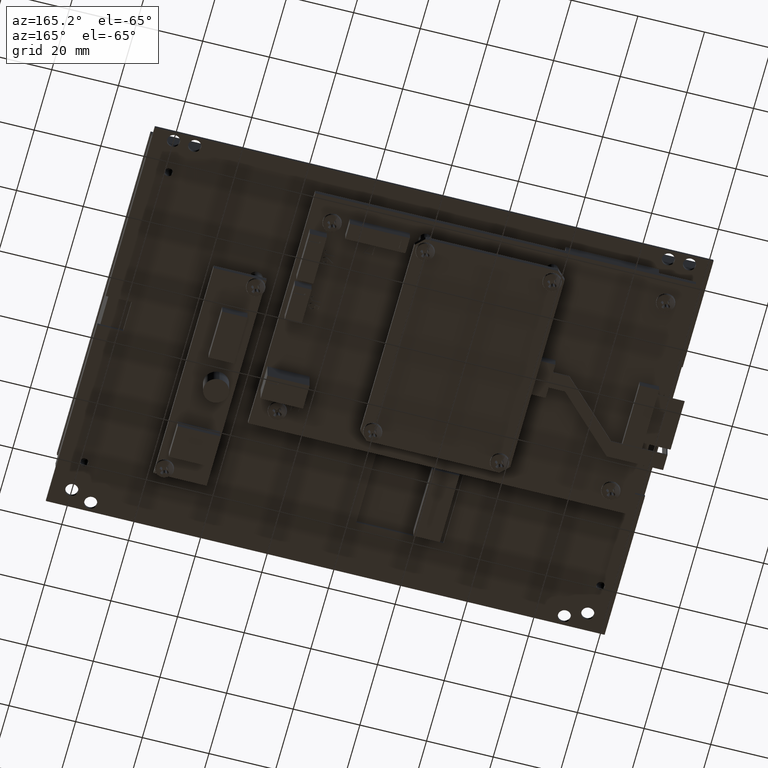
[diagram: clean part render]
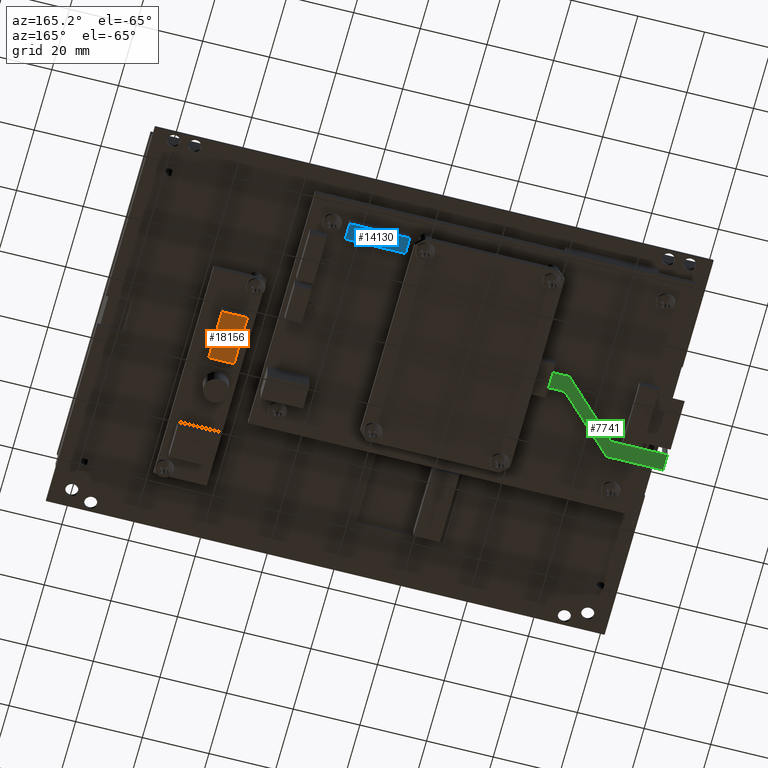
[diagram: same view with three faces highlighted in distinct colors, each labeled with its STEP entity id]
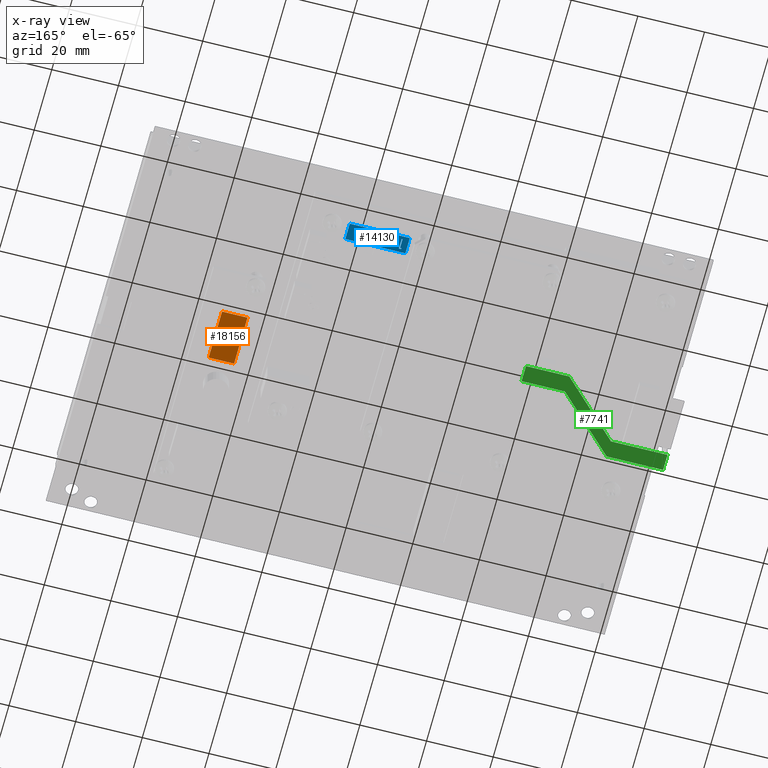
[diagram: x-ray of the same camera — body ghosted, the three highlighted faces saturated]
A machine part, auxiliary view with three faces highlighted in distinct colors.
The next image is the same camera in x-ray (body ghosted, the three faces saturated) — at least one of them is partly hidden behind the body in this view.
Their STEP definitions:

[orange] entity #18156 — the highlighted planar face has unit normal (0, 0, -1).
#5366 = EDGE_LOOP ( 'NONE', ( #8019, #8020, #8021, #8022 ) ) ;
#5927 = AXIS2_PLACEMENT_3D ( 'NONE', #12803, #12814, #12815 ) ;
#6467 = VECTOR ( 'NONE', #11881, 39.37007874015748100 ) ;
#6470 = VECTOR ( 'NONE', #11900, 39.37007874015748100 ) ;
#6472 = VECTOR ( 'NONE', #11913, 39.37007874015748100 ) ;
#6473 = VECTOR ( 'NONE', #11920, 39.37007874015748100 ) ;
#8019 = ORIENTED_EDGE ( 'NONE', *, *, #17822, .T. ) ;
#8020 = ORIENTED_EDGE ( 'NONE', *, *, #17825, .T. ) ;
#8021 = ORIENTED_EDGE ( 'NONE', *, *, #17827, .T. ) ;
#8022 = ORIENTED_EDGE ( 'NONE', *, *, #17828, .T. ) ;
#10743 = CARTESIAN_POINT ( 'NONE',  ( 0.09249999999999990200, 0.1889999999999999700, 0.2874999999999998100 ) ) ;
#10744 = CARTESIAN_POINT ( 'NONE',  ( -0.2075000000000001800, 0.1890000000000000600, 0.2874999999999998100 ) ) ;
#10745 = CARTESIAN_POINT ( 'NONE',  ( -0.2074999999999999100, 0.1890000000000001100, 0.8874999999999997300 ) ) ;
#10747 = CARTESIAN_POINT ( 'NONE',  ( 0.09250000000000017900, 0.1890000000000000600, 0.8874999999999997300 ) ) ;
#11875 = LINE ( 'NONE', #11879, #6467 ) ;
#11879 = CARTESIAN_POINT ( 'NONE',  ( 0.09250000000000017900, 0.1890000000000000600, 0.8874999999999997300 ) ) ;
#11881 = DIRECTION ( 'NONE',  ( -1.138269997360109700E-016, 0.0000000000000000000, -1.000000000000000000 ) ) ;
#11896 = LINE ( 'NONE', #11898, #6470 ) ;
#11898 = CARTESIAN_POINT ( 'NONE',  ( 0.09249999999999990200, 0.1889999999999999700, 0.2874999999999998100 ) ) ;
#11900 = DIRECTION ( 'NONE',  ( -1.000000000000000000, 0.0000000000000000000, -7.360038173205668400E-032 ) ) ;
#11908 = LINE ( 'NONE', #11911, #6472 ) ;
#11911 = CARTESIAN_POINT ( 'NONE',  ( -0.2074999999999999100, 0.1890000000000001100, 0.8874999999999997300 ) ) ;
#11913 = DIRECTION ( 'NONE',  ( 1.138269997360109700E-016, 0.0000000000000000000, 1.000000000000000000 ) ) ;
#11915 = LINE ( 'NONE', #11918, #6473 ) ;
#11918 = CARTESIAN_POINT ( 'NONE',  ( 0.09250000000000017900, 0.1890000000000000600, 0.8874999999999997300 ) ) ;
#11920 = DIRECTION ( 'NONE',  ( 1.000000000000000000, 0.0000000000000000000, 7.360038173205668400E-032 ) ) ;
#12803 = CARTESIAN_POINT ( 'NONE',  ( 0.09249999999999990200, 0.1889999999999999700, 0.2874999999999998100 ) ) ;
#12811 = FACE_OUTER_BOUND ( 'NONE', #5366, .T. ) ;
#12812 = PLANE ( 'NONE',  #5927 ) ;
#12814 = DIRECTION ( 'NONE',  ( -0.0000000000000000000, 1.000000000000000000, 0.0000000000000000000 ) ) ;
#12815 = DIRECTION ( 'NONE',  ( 7.360038173205668400E-032, 0.0000000000000000000, 1.000000000000000000 ) ) ;
#14522 = VERTEX_POINT ( 'NONE', #10743 ) ;
#14526 = VERTEX_POINT ( 'NONE', #10744 ) ;
#14527 = VERTEX_POINT ( 'NONE', #10745 ) ;
#14528 = VERTEX_POINT ( 'NONE', #10747 ) ;
#17822 = EDGE_CURVE ( 'NONE', #14528, #14522, #11875, .T. ) ;
#17825 = EDGE_CURVE ( 'NONE', #14522, #14526, #11896, .T. ) ;
#17827 = EDGE_CURVE ( 'NONE', #14526, #14527, #11908, .T. ) ;
#17828 = EDGE_CURVE ( 'NONE', #14527, #14528, #11915, .T. ) ;
#18156 = ADVANCED_FACE ( 'NONE', ( #12811 ), #12812, .T. ) ;

[blue] entity #14130 — the highlighted planar face has unit normal (0, 0, -1).
#601 = EDGE_CURVE ( 'NONE', #14615, #14612, #1584, .T. ) ;
#604 = EDGE_CURVE ( 'NONE', #14612, #14613, #1602, .T. ) ;
#606 = EDGE_CURVE ( 'NONE', #14613, #14603, #1605, .T. ) ;
#607 = EDGE_CURVE ( 'NONE', #14603, #14615, #1618, .T. ) ;
#608 = EDGE_CURVE ( 'NONE', #14616, #14617, #1621, .T. ) ;
#609 = EDGE_CURVE ( 'NONE', #14617, #14621, #1608, .T. ) ;
#610 = EDGE_CURVE ( 'NONE', #14621, #14622, #1627, .T. ) ;
#611 = EDGE_CURVE ( 'NONE', #14622, #14623, #1630, .T. ) ;
#612 = EDGE_CURVE ( 'NONE', #14623, #14624, #1633, .T. ) ;
#613 = EDGE_CURVE ( 'NONE', #14624, #14616, #1636, .T. ) ;
#1584 = LINE ( 'NONE', #1601, #6084 ) ;
#1601 = CARTESIAN_POINT ( 'NONE',  ( -1.074999999999993100, 0.1968582677165346400, -1.288999999999992200 ) ) ;
#1602 = LINE ( 'NONE', #1610, #6089 ) ;
#1603 = DIRECTION ( 'NONE',  ( 2.320466015010063200E-030, 9.860761315262708900E-032, -1.000000000000000000 ) ) ;
#1605 = LINE ( 'NONE', #1616, #6090 ) ;
#1608 = LINE ( 'NONE', #1625, #6092 ) ;
#1610 = CARTESIAN_POINT ( 'NONE',  ( -1.784999999999988400, 0.1968582677165350600, -1.288999999999991900 ) ) ;
#1611 = DIRECTION ( 'NONE',  ( -1.000000000000000000, -3.944304526105071300E-031, 2.221858401857429000E-030 ) ) ;
#1616 = CARTESIAN_POINT ( 'NONE',  ( -1.784999999999988400, 0.1968582677165350600, -1.288999999999991900 ) ) ;
#1617 = DIRECTION ( 'NONE',  ( -2.320466015010063200E-030, -9.860761315262708900E-032, 1.000000000000000000 ) ) ;
#1618 = LINE ( 'NONE', #1619, #6093 ) ;
#1619 = CARTESIAN_POINT ( 'NONE',  ( -1.784999999999991900, 0.1968582677165346400, -1.088999999999992200 ) ) ;
#1620 = DIRECTION ( 'NONE',  ( 1.000000000000000000, 3.944304526105071300E-031, -2.221858401857429000E-030 ) ) ;
#1621 = LINE ( 'NONE', #1623, #6094 ) ;
#1623 = CARTESIAN_POINT ( 'NONE',  ( -1.132406696033865900, 0.1968582677165351100, -1.140888737415104700 ) ) ;
#1624 = DIRECTION ( 'NONE',  ( -0.4966865118376911400, -2.773339119917636700E-031, 0.8679300138597047000 ) ) ;
#1625 = CARTESIAN_POINT ( 'NONE',  ( -1.139743434815916800, 0.1968582677165351100, -1.128068224594591900 ) ) ;
#1626 = DIRECTION ( 'NONE',  ( -1.000000000000000000, -3.944304526105071300E-031, 2.221858401857429000E-030 ) ) ;
#1627 = LINE ( 'NONE', #1628, #6096 ) ;
#1628 = CARTESIAN_POINT ( 'NONE',  ( -1.162855413982583500, 0.1968582677165346400, -1.128068224594591900 ) ) ;
#1629 = DIRECTION ( 'NONE',  ( 2.320466015010063200E-030, 9.860761315262708900E-032, -1.000000000000000000 ) ) ;
#1630 = LINE ( 'NONE', #1631, #6097 ) ;
#1631 = CARTESIAN_POINT ( 'NONE',  ( -1.162855413982584000, 0.1968582677165338900, -1.253068224594588100 ) ) ;
#1632 = DIRECTION ( 'NONE',  ( 1.000000000000000000, 3.944304526105071300E-031, -2.221858401857429000E-030 ) ) ;
#1633 = LINE ( 'NONE', #1634, #6098 ) ;
#1634 = CARTESIAN_POINT ( 'NONE',  ( -1.151637465264635300, 0.1968582677165346400, -1.253068224594588100 ) ) ;
#1635 = DIRECTION ( 'NONE',  ( -2.320466015010063200E-030, -9.860761315262708900E-032, 1.000000000000000000 ) ) ;
#1636 = LINE ( 'NONE', #1637, #6099 ) ;
#1637 = CARTESIAN_POINT ( 'NONE',  ( -1.151637465264635100, 0.1968582677165353900, -1.140888737415104700 ) ) ;
#1638 = DIRECTION ( 'NONE',  ( 1.000000000000000000, 3.944304526105071300E-031, -2.221858401857429000E-030 ) ) ;
#6084 = VECTOR ( 'NONE', #1603, 39.37007874015748100 ) ;
#6089 = VECTOR ( 'NONE', #1611, 39.37007874015748100 ) ;
#6090 = VECTOR ( 'NONE', #1617, 39.37007874015748100 ) ;
#6092 = VECTOR ( 'NONE', #1626, 39.37007874015748100 ) ;
#6093 = VECTOR ( 'NONE', #1620, 39.37007874015748100 ) ;
#6094 = VECTOR ( 'NONE', #1624, 39.37007874015748100 ) ;
#6096 = VECTOR ( 'NONE', #1629, 39.37007874015748100 ) ;
#6097 = VECTOR ( 'NONE', #1632, 39.37007874015748100 ) ;
#6098 = VECTOR ( 'NONE', #1635, 39.37007874015748100 ) ;
#6099 = VECTOR ( 'NONE', #1638, 39.37007874015748100 ) ;
#7194 = ORIENTED_EDGE ( 'NONE', *, *, #608, .T. ) ;
#7195 = ORIENTED_EDGE ( 'NONE', *, *, #609, .T. ) ;
#7196 = ORIENTED_EDGE ( 'NONE', *, *, #610, .T. ) ;
#7197 = ORIENTED_EDGE ( 'NONE', *, *, #611, .T. ) ;
#7198 = ORIENTED_EDGE ( 'NONE', *, *, #612, .T. ) ;
#7199 = ORIENTED_EDGE ( 'NONE', *, *, #613, .T. ) ;
#7200 = ORIENTED_EDGE ( 'NONE', *, *, #601, .T. ) ;
#7201 = ORIENTED_EDGE ( 'NONE', *, *, #604, .T. ) ;
#7202 = ORIENTED_EDGE ( 'NONE', *, *, #606, .T. ) ;
#7203 = ORIENTED_EDGE ( 'NONE', *, *, #607, .T. ) ;
#10327 = AXIS2_PLACEMENT_3D ( 'NONE', #15427, #15439, #15440 ) ;
#10824 = CARTESIAN_POINT ( 'NONE',  ( -1.784999999999991900, 0.1968582677165346400, -1.088999999999992200 ) ) ;
#10839 = CARTESIAN_POINT ( 'NONE',  ( -1.074999999999993100, 0.1968582677165346400, -1.288999999999992200 ) ) ;
#10841 = CARTESIAN_POINT ( 'NONE',  ( -1.784999999999988400, 0.1968582677165350600, -1.288999999999991900 ) ) ;
#10844 = CARTESIAN_POINT ( 'NONE',  ( -1.074999999999992400, 0.1968582677165338400, -1.088999999999994900 ) ) ;
#10845 = CARTESIAN_POINT ( 'NONE',  ( -1.132406696033865900, 0.1968582677165351100, -1.140888737415104700 ) ) ;
#10847 = CARTESIAN_POINT ( 'NONE',  ( -1.139743434815916800, 0.1968582677165351100, -1.128068224594591900 ) ) ;
#10854 = CARTESIAN_POINT ( 'NONE',  ( -1.162855413982583500, 0.1968582677165346400, -1.128068224594591900 ) ) ;
#10856 = CARTESIAN_POINT ( 'NONE',  ( -1.162855413982584000, 0.1968582677165338900, -1.253068224594588100 ) ) ;
#10858 = CARTESIAN_POINT ( 'NONE',  ( -1.151637465264635300, 0.1968582677165346400, -1.253068224594588100 ) ) ;
#10859 = CARTESIAN_POINT ( 'NONE',  ( -1.151637465264635100, 0.1968582677165353900, -1.140888737415104700 ) ) ;
#14130 = ADVANCED_FACE ( 'NONE', ( #15436, #15432 ), #15437, .T. ) ;
#14535 = EDGE_LOOP ( 'NONE', ( #7200, #7201, #7202, #7203 ) ) ;
#14545 = EDGE_LOOP ( 'NONE', ( #7194, #7195, #7196, #7197, #7198, #7199 ) ) ;
#14603 = VERTEX_POINT ( 'NONE', #10824 ) ;
#14612 = VERTEX_POINT ( 'NONE', #10839 ) ;
#14613 = VERTEX_POINT ( 'NONE', #10841 ) ;
#14615 = VERTEX_POINT ( 'NONE', #10844 ) ;
#14616 = VERTEX_POINT ( 'NONE', #10845 ) ;
#14617 = VERTEX_POINT ( 'NONE', #10847 ) ;
#14621 = VERTEX_POINT ( 'NONE', #10854 ) ;
#14622 = VERTEX_POINT ( 'NONE', #10856 ) ;
#14623 = VERTEX_POINT ( 'NONE', #10858 ) ;
#14624 = VERTEX_POINT ( 'NONE', #10859 ) ;
#15427 = CARTESIAN_POINT ( 'NONE',  ( -1.074999999999992400, 0.1968582677165338400, -1.088999999999994900 ) ) ;
#15432 = FACE_OUTER_BOUND ( 'NONE', #14535, .T. ) ;
#15436 = FACE_BOUND ( 'NONE', #14545, .T. ) ;
#15437 = PLANE ( 'NONE',  #10327 ) ;
#15439 = DIRECTION ( 'NONE',  ( 9.860761315262679100E-031, 1.000000000000000000, 9.860761315262708900E-032 ) ) ;
#15440 = DIRECTION ( 'NONE',  ( -2.320466015010062900E-030, -9.860761315262708900E-032, 1.000000000000000000 ) ) ;

[green] entity #7741 — the highlighted planar face has unit normal (0, -0, -1).
#854 = EDGE_CURVE ( 'NONE', #8524, #8538, #2382, .T. ) ;
#857 = EDGE_CURVE ( 'NONE', #8540, #8543, #2383, .T. ) ;
#863 = EDGE_CURVE ( 'NONE', #8524, #8540, #2402, .T. ) ;
#864 = EDGE_CURVE ( 'NONE', #8538, #8547, #2412, .T. ) ;
#865 = EDGE_CURVE ( 'NONE', #8547, #8549, #2415, .T. ) ;
#866 = EDGE_CURVE ( 'NONE', #8549, #8550, #2418, .T. ) ;
#867 = EDGE_CURVE ( 'NONE', #8550, #8552, #2421, .T. ) ;
#868 = EDGE_CURVE ( 'NONE', #8552, #8543, #2424, .T. ) ;
#2382 = LINE ( 'NONE', #2384, #5657 ) ;
#2383 = LINE ( 'NONE', #2392, #5659 ) ;
#2384 = CARTESIAN_POINT ( 'NONE',  ( 3.373716535433082700, 0.8118110000000000600, -0.02755905511811071800 ) ) ;
#2385 = DIRECTION ( 'NONE',  ( -1.000000000000000000, -2.775958175077557600E-016, 4.163336342344324700E-016 ) ) ;
#2392 = CARTESIAN_POINT ( 'NONE',  ( 3.373716535433082700, 0.8118110000000000600, 0.1692913385826768900 ) ) ;
#2393 = DIRECTION ( 'NONE',  ( -1.000000000000000000, -2.775958175077557600E-016, 4.163336342344324700E-016 ) ) ;
#2402 = LINE ( 'NONE', #2410, #5665 ) ;
#2410 = CARTESIAN_POINT ( 'NONE',  ( 3.385527535433082500, 0.8118110000000000600, -0.02755905511811071800 ) ) ;
#2411 = DIRECTION ( 'NONE',  ( -4.163336342344345400E-016, 7.902038014058880900E-016, 1.000000000000000000 ) ) ;
#2412 = LINE ( 'NONE', #2413, #5667 ) ;
#2413 = CARTESIAN_POINT ( 'NONE',  ( 2.717716535433082600, 0.8118110000000003900, -0.02755905511811037800 ) ) ;
#2414 = DIRECTION ( 'NONE',  ( -0.7071067811865503500, -8.964344288705636300E-016, -0.7071067811865446900 ) ) ;
#2415 = LINE ( 'NONE', #2416, #5668 ) ;
#2416 = CARTESIAN_POINT ( 'NONE',  ( 2.048425196850402600, 0.8118109999999999500, -0.6968503937007869400 ) ) ;
#2417 = DIRECTION ( 'NONE',  ( -1.000000000000000000, -3.362562308051070100E-016, 4.163336342344324700E-016 ) ) ;
#2418 = LINE ( 'NONE', #2419, #5669 ) ;
#2419 = CARTESIAN_POINT ( 'NONE',  ( 1.536614173228352700, 0.8118109999999999500, -0.6968503937007869400 ) ) ;
#2420 = DIRECTION ( 'NONE',  ( -4.163336342344345400E-016, 7.902038014058880900E-016, 1.000000000000000000 ) ) ;
#2421 = LINE ( 'NONE', #2422, #5670 ) ;
#2422 = CARTESIAN_POINT ( 'NONE',  ( 1.536614173228352700, 0.8118109999999999500, -0.4999999999999997200 ) ) ;
#2423 = DIRECTION ( 'NONE',  ( 1.000000000000000000, 3.362562308051070100E-016, -4.163336342344324700E-016 ) ) ;
#2424 = LINE ( 'NONE', #2425, #5671 ) ;
#2425 = CARTESIAN_POINT ( 'NONE',  ( 2.048425196850402600, 0.8118109999999999500, -0.4999999999999997200 ) ) ;
#2426 = DIRECTION ( 'NONE',  ( 0.7071067811865502400, 8.964344288705636300E-016, 0.7071067811865448000 ) ) ;
#4267 = CARTESIAN_POINT ( 'NONE',  ( 3.373716535433082700, 0.8118110000000000600, -0.02755905511811071800 ) ) ;
#4275 = FACE_OUTER_BOUND ( 'NONE', #13877, .T. ) ;
#4276 = PLANE ( 'NONE',  #19164 ) ;
#4278 = DIRECTION ( 'NONE',  ( -2.775958175077554700E-016, 1.000000000000000000, 7.902038014058883900E-016 ) ) ;
#4279 = DIRECTION ( 'NONE',  ( -1.000000000000000000, -2.775958175077558100E-016, 4.163336342344325200E-016 ) ) ;
#5657 = VECTOR ( 'NONE', #2385, 39.37007874015748100 ) ;
#5659 = VECTOR ( 'NONE', #2393, 39.37007874015748100 ) ;
#5665 = VECTOR ( 'NONE', #2411, 39.37007874015748100 ) ;
#5667 = VECTOR ( 'NONE', #2414, 39.37007874015748100 ) ;
#5668 = VECTOR ( 'NONE', #2417, 39.37007874015748100 ) ;
#5669 = VECTOR ( 'NONE', #2420, 39.37007874015748100 ) ;
#5670 = VECTOR ( 'NONE', #2423, 39.37007874015748100 ) ;
#5671 = VECTOR ( 'NONE', #2426, 39.37007874015748100 ) ;
#7741 = ADVANCED_FACE ( 'NONE', ( #4275 ), #4276, .T. ) ;
#8524 = VERTEX_POINT ( 'NONE', #9402 ) ;
#8538 = VERTEX_POINT ( 'NONE', #9411 ) ;
#8540 = VERTEX_POINT ( 'NONE', #9412 ) ;
#8543 = VERTEX_POINT ( 'NONE', #9414 ) ;
#8547 = VERTEX_POINT ( 'NONE', #9417 ) ;
#8549 = VERTEX_POINT ( 'NONE', #9418 ) ;
#8550 = VERTEX_POINT ( 'NONE', #9419 ) ;
#8552 = VERTEX_POINT ( 'NONE', #9420 ) ;
#9402 = CARTESIAN_POINT ( 'NONE',  ( 3.385527535433082500, 0.8118110000000000600, -0.02755905511811071800 ) ) ;
#9411 = CARTESIAN_POINT ( 'NONE',  ( 2.717716535433082100, 0.8118109999999999500, -0.02755905511811037800 ) ) ;
#9412 = CARTESIAN_POINT ( 'NONE',  ( 3.385527535433082500, 0.8118110000000000600, 0.1692913385826768900 ) ) ;
#9414 = CARTESIAN_POINT ( 'NONE',  ( 2.717716535433082100, 0.8118109999999999500, 0.1692913385826768900 ) ) ;
#9417 = CARTESIAN_POINT ( 'NONE',  ( 2.048425196850402600, 0.8118109999999999500, -0.6968503937007869400 ) ) ;
#9418 = CARTESIAN_POINT ( 'NONE',  ( 1.536614173228352700, 0.8118109999999999500, -0.6968503937007869400 ) ) ;
#9419 = CARTESIAN_POINT ( 'NONE',  ( 1.536614173228352700, 0.8118109999999999500, -0.4999999999999997200 ) ) ;
#9420 = CARTESIAN_POINT ( 'NONE',  ( 2.048425196850402600, 0.8118109999999999500, -0.4999999999999997200 ) ) ;
#13877 = EDGE_LOOP ( 'NONE', ( #18960, #18962, #18964, #18966, #18968, #18970, #18972, #18974 ) ) ;
#18960 = ORIENTED_EDGE ( 'NONE', *, *, #857, .F. ) ;
#18962 = ORIENTED_EDGE ( 'NONE', *, *, #863, .F. ) ;
#18964 = ORIENTED_EDGE ( 'NONE', *, *, #854, .T. ) ;
#18966 = ORIENTED_EDGE ( 'NONE', *, *, #864, .T. ) ;
#18968 = ORIENTED_EDGE ( 'NONE', *, *, #865, .T. ) ;
#18970 = ORIENTED_EDGE ( 'NONE', *, *, #866, .T. ) ;
#18972 = ORIENTED_EDGE ( 'NONE', *, *, #867, .T. ) ;
#18974 = ORIENTED_EDGE ( 'NONE', *, *, #868, .T. ) ;
#19164 = AXIS2_PLACEMENT_3D ( 'NONE', #4267, #4278, #4279 ) ;